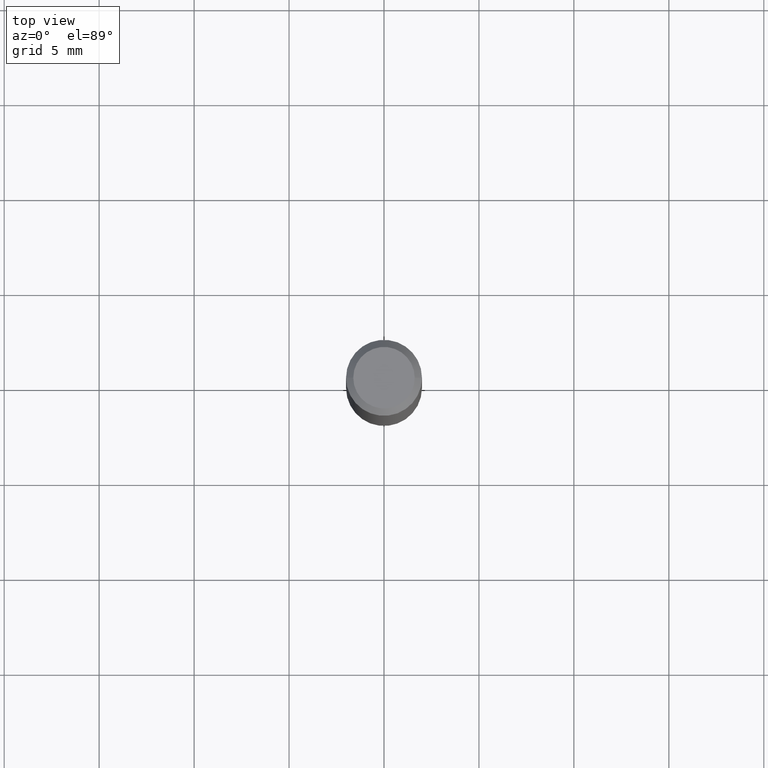
[diagram: clean part render]
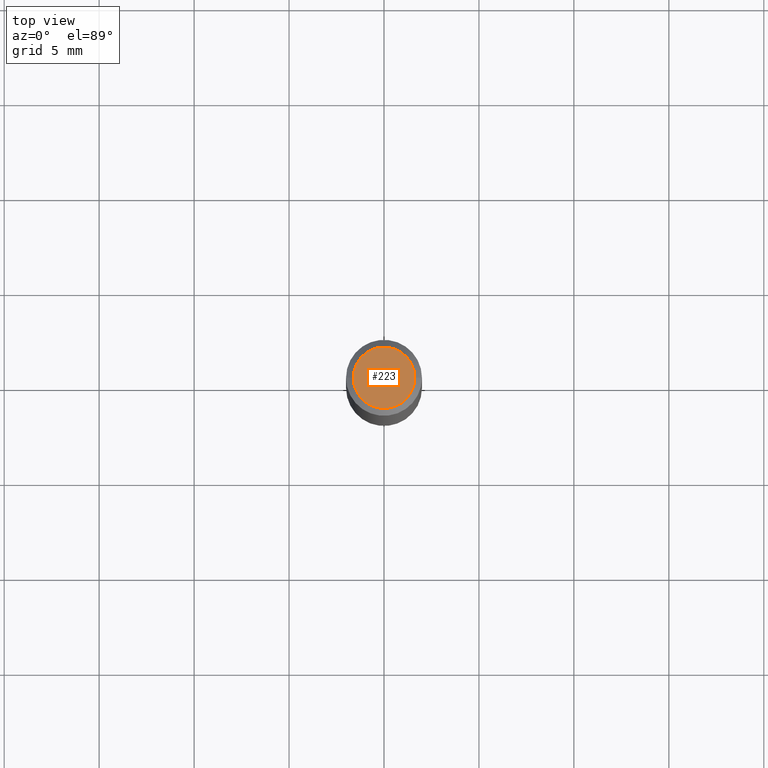
[diagram: same view with one face highlighted and labeled with its STEP entity id]
A machine part, top view. The second image highlights one B-rep face of the part: STEP entity #223.
In plain terms, the highlighted planar face has unit normal (0, -0, -1).
Its self-contained STEP definition (entity closure, byte-faithful):
#3 = ORIENTED_EDGE ( 'NONE', *, *, #255, .T. ) ;
#65 = DIRECTION ( 'NONE',  ( -1.000000000000000000, 6.982962677686265922E-15, -4.876176775795935793E-29 ) ) ;
#89 = DIRECTION ( 'NONE',  ( 1.000000000000000000, -6.982962677686265922E-15, 4.852736867747365646E-29 ) ) ;
#90 = FACE_OUTER_BOUND ( 'NONE', #160, .T. ) ;
#93 = CARTESIAN_POINT ( 'NONE',  ( 4.451638707024993845E-16, 0.06375000000000000111, -1.187890929748605601E-16 ) ) ;
#107 = AXIS2_PLACEMENT_3D ( 'NONE', #170, #423, #136 ) ;
#120 = AXIS2_PLACEMENT_3D ( 'NONE', #308, #293, #89 ) ;
#129 = AXIS2_PLACEMENT_3D ( 'NONE', #93, #243, #65 ) ;
#136 = DIRECTION ( 'NONE',  ( 1.000000000000000000, -6.982962677686265922E-15, 4.852736867747365646E-29 ) ) ;
#160 = EDGE_LOOP ( 'NONE', ( #347, #3 ) ) ;
#170 = CARTESIAN_POINT ( 'NONE',  ( -5.076443166735047805E-45, 7.247815445253071091E-31, 2.075856847527799160E-16 ) ) ;
#223 = ADVANCED_FACE ( 'NONE', ( #90 ), #348, .F. ) ;
#243 = DIRECTION ( 'NONE',  ( 2.438088387897960049E-29, -3.491481338843145188E-15, -1.000000000000000000 ) ) ;
#255 = EDGE_CURVE ( 'NONE', #377, #338, #320, .T. ) ;
#293 = DIRECTION ( 'NONE',  ( -2.445468806185136597E-29, 3.491481338843145583E-15, 1.000000000000000000 ) ) ;
#298 = CARTESIAN_POINT ( 'NONE',  ( 0.06375000000000000111, -5.149965923825448321E-16, 2.075856847527832686E-16 ) ) ;
#308 = CARTESIAN_POINT ( 'NONE',  ( -5.076443166735047805E-45, 7.247815445253071091E-31, 2.075856847527799160E-16 ) ) ;
#320 = CIRCLE ( 'NONE', #107, 0.06375000000000000111 ) ;
#338 = VERTEX_POINT ( 'NONE', #465 ) ;
#347 = ORIENTED_EDGE ( 'NONE', *, *, #426, .T. ) ;
#348 = PLANE ( 'NONE',  #129 ) ;
#377 = VERTEX_POINT ( 'NONE', #298 ) ;
#423 = DIRECTION ( 'NONE',  ( -2.445468806185136597E-29, 3.491481338843145583E-15, 1.000000000000000000 ) ) ;
#426 = EDGE_CURVE ( 'NONE', #338, #377, #448, .T. ) ;
#448 = CIRCLE ( 'NONE', #120, 0.06375000000000000111 ) ;
#465 = CARTESIAN_POINT ( 'NONE',  ( -0.06375000000000000111, 4.713499807438232199E-16, 2.075856847527766866E-16 ) ) ;